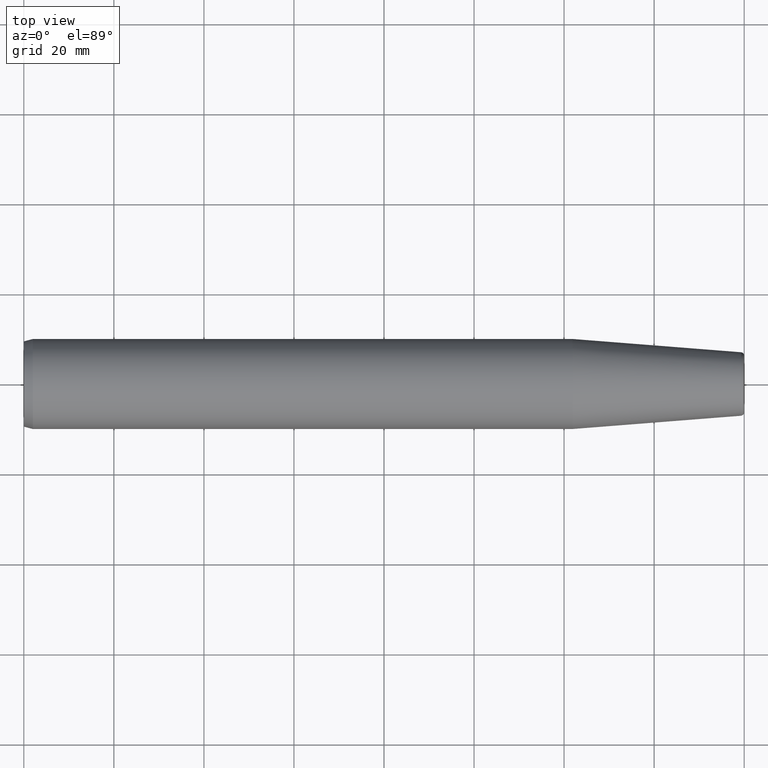
[diagram: clean part render]
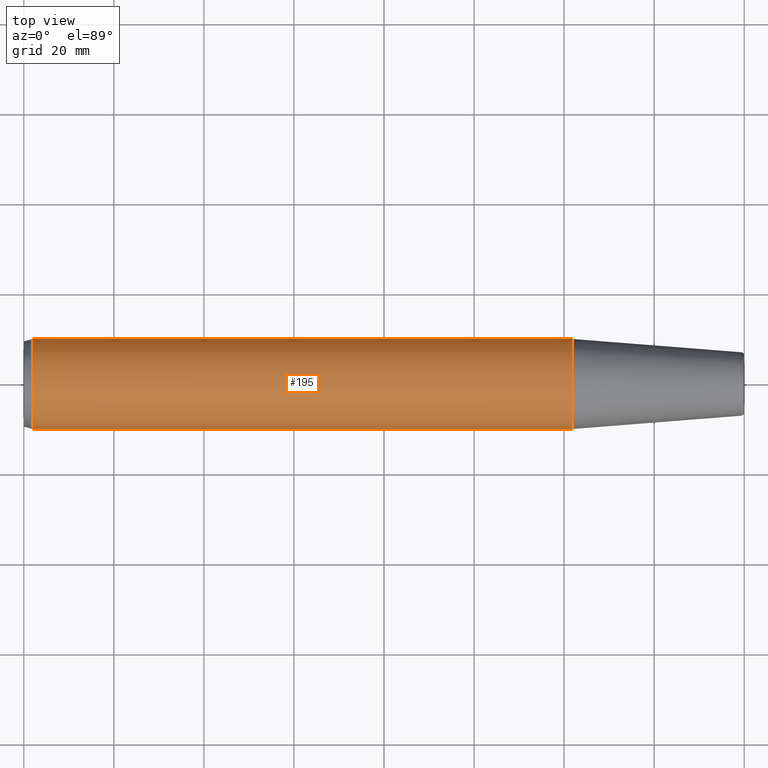
[diagram: same view with one face highlighted and labeled with its STEP entity id]
A machine part, top view. The second image highlights one B-rep face of the part: STEP entity #195.
In plain terms, the highlighted cylindrical surface (partial cylindrical patch) has radius 10 mm, axis along (1, 0, 0).
Its self-contained STEP definition (entity closure, byte-faithful):
#19=CARTESIAN_POINT('',(2.E0,0.E0,0.E0));
#20=DIRECTION('',(-1.E0,0.E0,0.E0));
#21=DIRECTION('',(0.E0,-1.E0,0.E0));
#22=AXIS2_PLACEMENT_3D('',#19,#20,#21);
#24=CARTESIAN_POINT('',(1.218813857915E2,0.E0,0.E0));
#25=DIRECTION('',(1.E0,0.E0,0.E0));
#26=DIRECTION('',(0.E0,1.E0,0.E0));
#27=AXIS2_PLACEMENT_3D('',#24,#25,#26);
#34=DIRECTION('',(-1.E0,8.924208096184E-13,-8.051852642357E-12));
#35=VECTOR('',#34,1.198813857919E2);
#36=CARTESIAN_POINT('',(1.218813857915E2,-1.E1,0.E0));
#37=LINE('',#36,#35);
#43=DIRECTION('',(-1.E0,-8.924208096184E-13,8.051863980004E-12));
#44=VECTOR('',#43,1.198813857919E2);
#45=CARTESIAN_POINT('',(1.218813857915E2,1.E1,0.E0));
#46=LINE('',#45,#44);
#113=CARTESIAN_POINT('',(1.218813857915E2,1.E1,0.E0));
#114=CARTESIAN_POINT('',(1.218813857915E2,-1.E1,0.E0));
#115=VERTEX_POINT('',#113);
#116=VERTEX_POINT('',#114);
#129=CARTESIAN_POINT('',(2.E0,1.E1,0.E0));
#130=CARTESIAN_POINT('',(2.E0,-1.E1,0.E0));
#131=VERTEX_POINT('',#129);
#132=VERTEX_POINT('',#130);
#181=CARTESIAN_POINT('',(-8.E0,0.E0,0.E0));
#182=DIRECTION('',(1.E0,0.E0,0.E0));
#183=DIRECTION('',(0.E0,-1.E0,0.E0));
#184=AXIS2_PLACEMENT_3D('',#181,#182,#183);
#185=CYLINDRICAL_SURFACE('',#184,1.E1);
#186=ORIENTED_EDGE('',*,*,#175,.T.);
#188=ORIENTED_EDGE('',*,*,#187,.F.);
#190=ORIENTED_EDGE('',*,*,#189,.T.);
#192=ORIENTED_EDGE('',*,*,#191,.T.);
#193=EDGE_LOOP('',(#186,#188,#190,#192));
#194=FACE_OUTER_BOUND('',#193,.F.);
#195=ADVANCED_FACE('',(#194),#185,.T.);
#23=CIRCLE('',#22,1.E1);
#28=CIRCLE('',#27,1.E1);
#175=EDGE_CURVE('',#132,#131,#23,.T.);
#187=EDGE_CURVE('',#115,#131,#46,.T.);
#189=EDGE_CURVE('',#115,#116,#28,.T.);
#191=EDGE_CURVE('',#116,#132,#37,.T.);